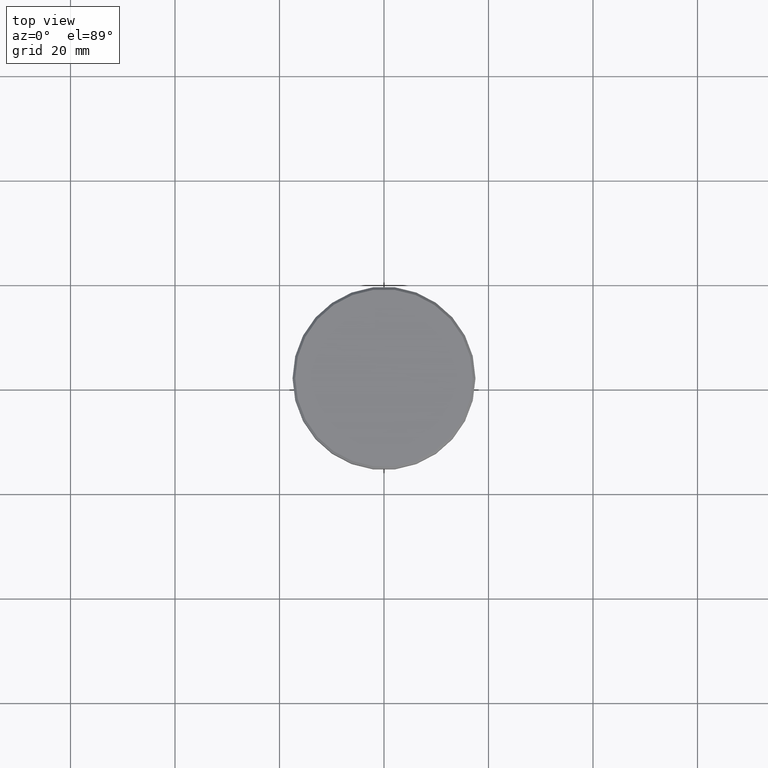
[diagram: clean part render]
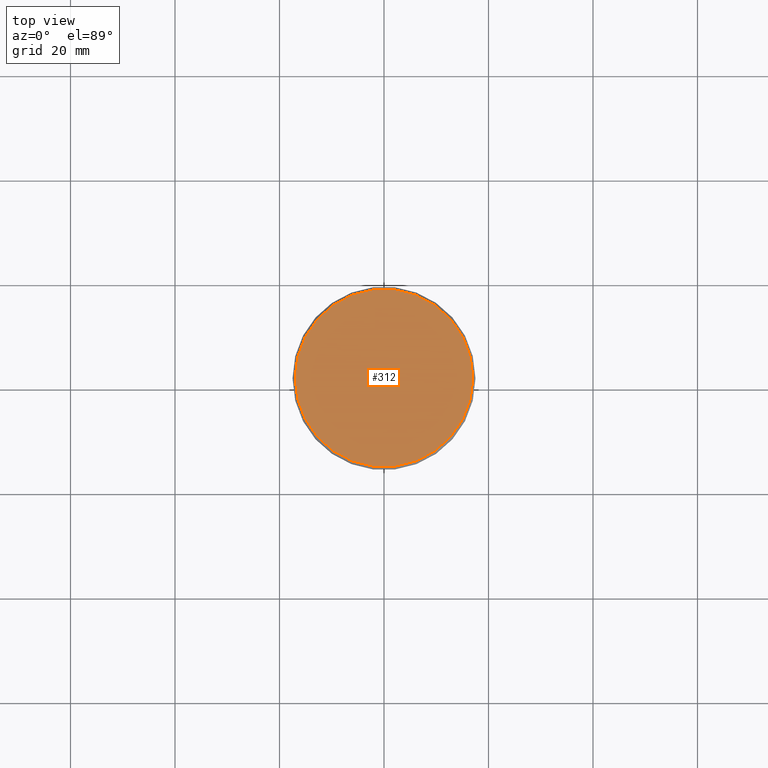
[diagram: same view with one face highlighted and labeled with its STEP entity id]
A machine part, top view. The second image highlights one B-rep face of the part: STEP entity #312.
In plain terms, the highlighted planar face has unit normal (0, -0, 1).
Its self-contained STEP definition (entity closure, byte-faithful):
#10 = ORIENTED_EDGE ( 'NONE', *, *, #139, .T. ) ;
#25 = DIRECTION ( 'NONE',  ( -0.000000000000000000, -0.000000000000000000, 1.000000000000000000 ) ) ;
#64 = DIRECTION ( 'NONE',  ( 0.000000000000000000, -0.000000000000000000, 1.000000000000000000 ) ) ;
#109 = CARTESIAN_POINT ( 'NONE',  ( 17.00000000000001421, 2.112515728529185250E-15, 0.000000000000000000 ) ) ;
#139 = EDGE_CURVE ( 'NONE', #197, #1043, #423, .T. ) ;
#185 = AXIS2_PLACEMENT_3D ( 'NONE', #787, #64, #880 ) ;
#197 = VERTEX_POINT ( 'NONE', #109 ) ;
#217 = CARTESIAN_POINT ( 'NONE',  ( 0.000000000000000000, 0.000000000000000000, 0.000000000000000000 ) ) ;
#277 = CIRCLE ( 'NONE', #678, 17.00000000000001421 ) ;
#312 = ADVANCED_FACE ( 'NONE', ( #971 ), #1046, .T. ) ;
#316 = DIRECTION ( 'NONE',  ( 1.000000000000000000, 0.000000000000000000, 0.000000000000000000 ) ) ;
#423 = CIRCLE ( 'NONE', #455, 17.00000000000001421 ) ;
#455 = AXIS2_PLACEMENT_3D ( 'NONE', #217, #25, #316 ) ;
#478 = EDGE_CURVE ( 'NONE', #1043, #197, #277, .T. ) ;
#571 = CARTESIAN_POINT ( 'NONE',  ( -17.00000000000001421, 0.000000000000000000, 0.000000000000000000 ) ) ;
#634 = CARTESIAN_POINT ( 'NONE',  ( 0.000000000000000000, 0.000000000000000000, 0.000000000000000000 ) ) ;
#678 = AXIS2_PLACEMENT_3D ( 'NONE', #634, #1163, #1170 ) ;
#701 = ORIENTED_EDGE ( 'NONE', *, *, #478, .T. ) ;
#787 = CARTESIAN_POINT ( 'NONE',  ( 0.000000000000000000, 0.000000000000000000, 0.000000000000000000 ) ) ;
#847 = EDGE_LOOP ( 'NONE', ( #701, #10 ) ) ;
#880 = DIRECTION ( 'NONE',  ( 1.000000000000000000, 0.000000000000000000, 0.000000000000000000 ) ) ;
#971 = FACE_OUTER_BOUND ( 'NONE', #847, .T. ) ;
#1043 = VERTEX_POINT ( 'NONE', #571 ) ;
#1046 = PLANE ( 'NONE',  #185 ) ;
#1163 = DIRECTION ( 'NONE',  ( -0.000000000000000000, -0.000000000000000000, 1.000000000000000000 ) ) ;
#1170 = DIRECTION ( 'NONE',  ( 1.000000000000000000, 0.000000000000000000, 0.000000000000000000 ) ) ;